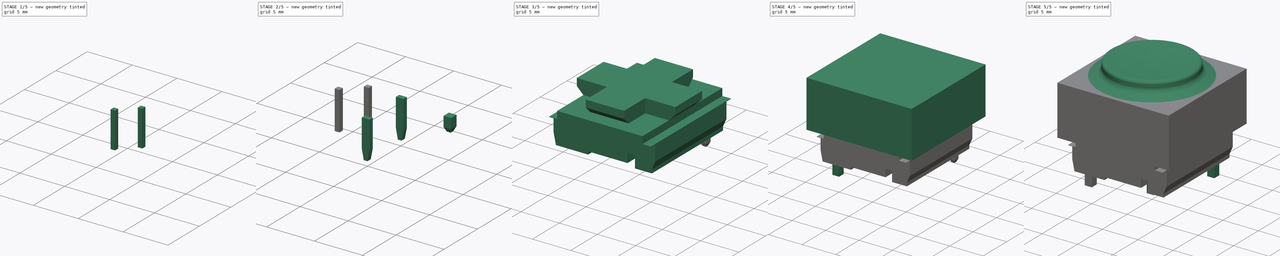
[diagram: build sequence overview — one tinted view per stage of 5, left to right]
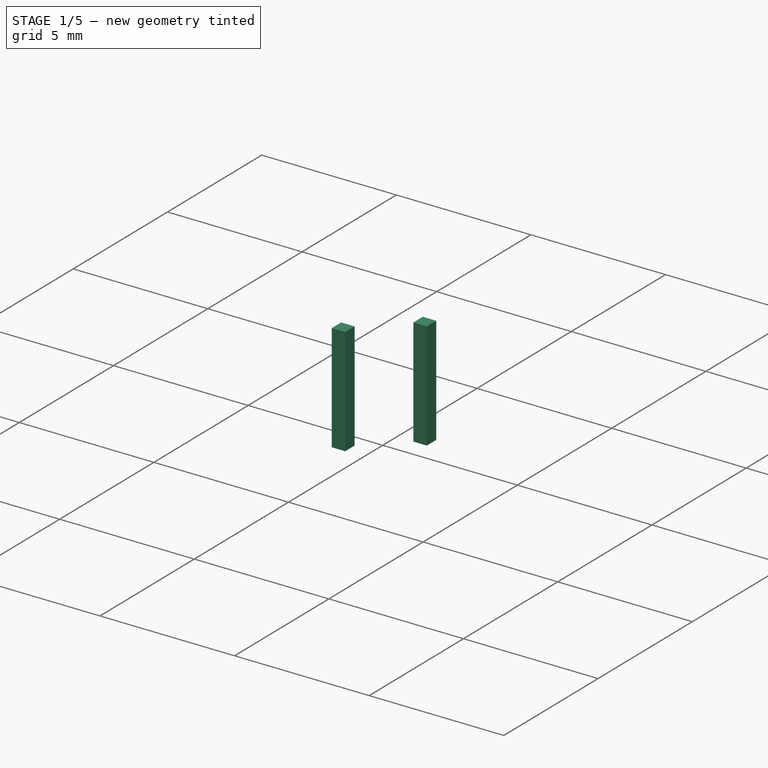
[diagram: stage 1 of 5 — iso view after this stage's code; geometry added in this stage tinted green]
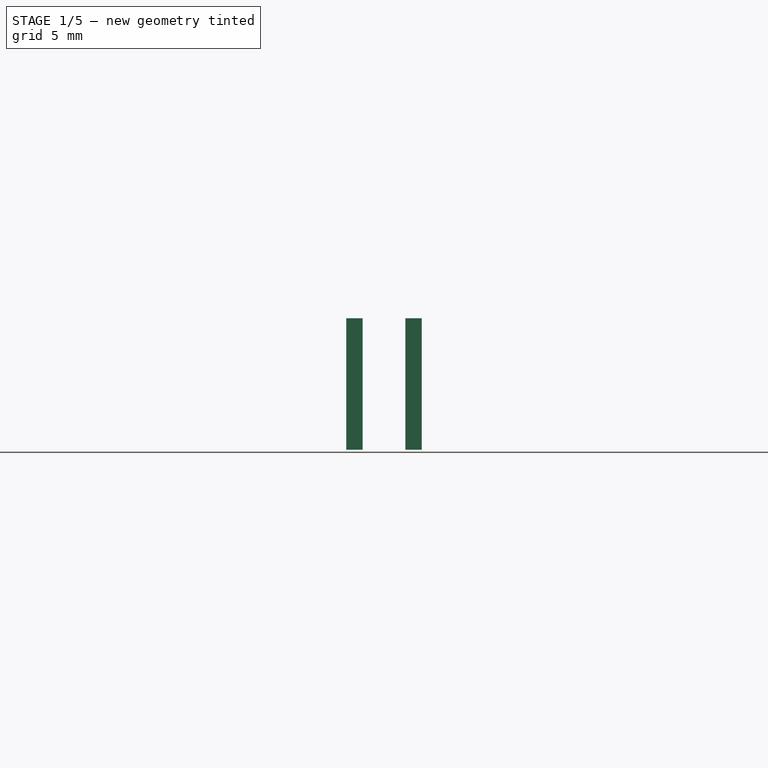
[diagram: stage 1 of 5 — front view after this stage's code; geometry added in this stage tinted green]
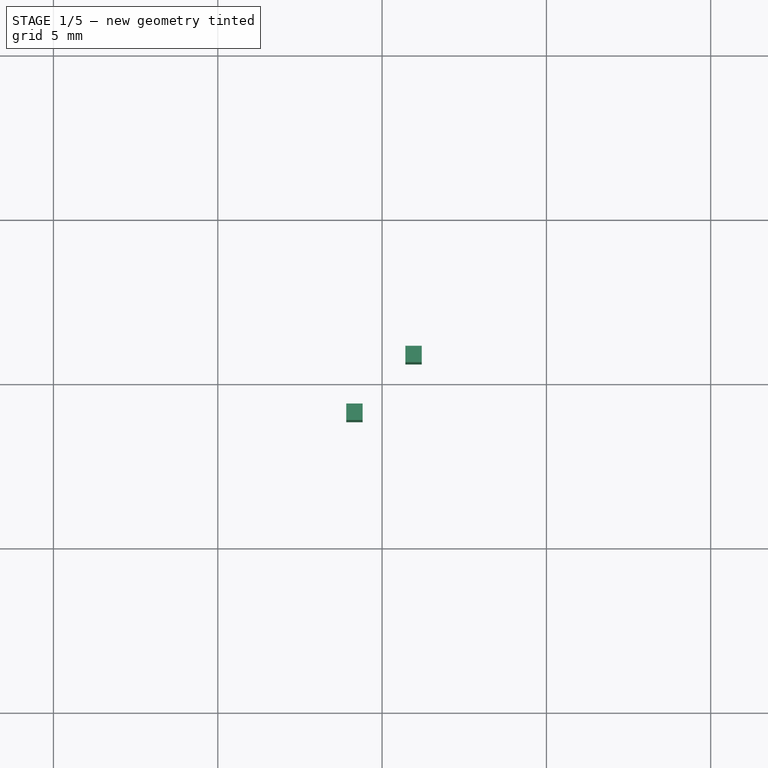
[diagram: stage 1 of 5 — top view after this stage's code; geometry added in this stage tinted green]
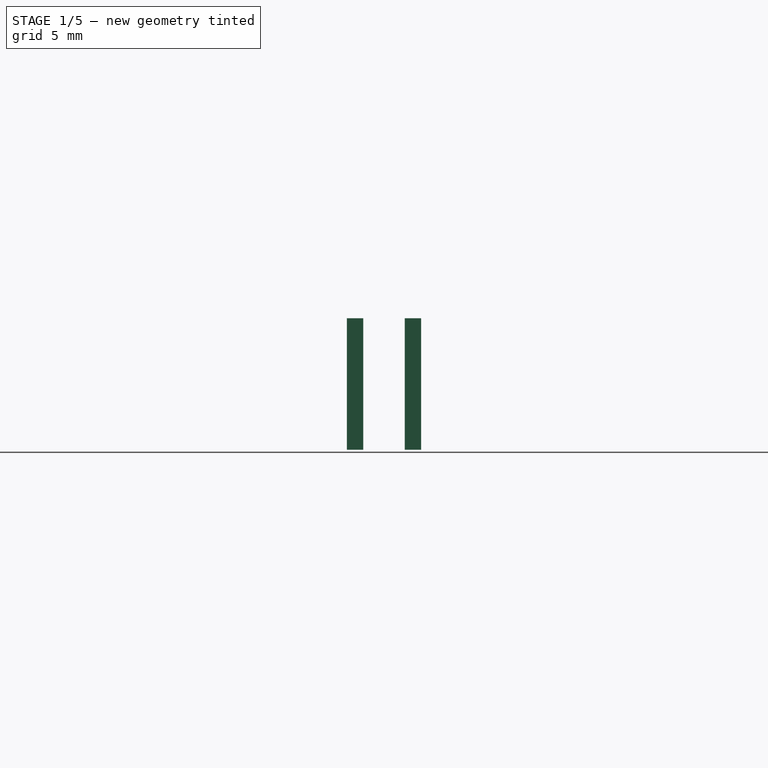
[diagram: stage 1 of 5 — right view after this stage's code; geometry added in this stage tinted green]
FCSTD DOCUMENT  (FreeCAD 0.17R13247 (Git))
Label: marquardt_6425
License: All rights reserved
LicenseURL: http://en.wikipedia.org/wiki/All_rights_reserved
objects: Sketcher::SketchObject×16, PartDesign::Pad×8, Part::FeaturePython×8, Part::Extrusion×5, Image::ImagePlane×4, Part::MultiCommon×4, Part::Compound×4, Part::MultiFuse×2, Part::Revolution×1, PartDesign::Pocket×1, PartDesign::Revolution×1, Spreadsheet::Sheet×1
note: 60 computed .brp shape members not serialized (recipe doc carries the construction recipe); baked Part::Feature solids carry a one-line shape summary decoded from their .brp

FEATURE [Sketcher::SketchObject] Sketch007
  MapMode = 5
  Placement = pos=(0,0,0) rot=(1,0,0;1.5708rad)
  sketch-geometry (4):
    g0: LineSegment StartX=-3.79179 StartY=-10.3286 StartZ=0 EndX=-4.29179 EndY=-10.3286 EndZ=0
    g1: LineSegment StartX=-4.29179 StartY=-10.3286 StartZ=0 EndX=-4.29179 EndY=-6.32858 EndZ=0
    g2: LineSegment StartX=-4.29179 StartY=-6.32858 StartZ=0 EndX=-3.79179 EndY=-6.32858 EndZ=0
    g3: LineSegment StartX=-3.79179 StartY=-6.32858 StartZ=0 EndX=-3.79179 EndY=-10.3286 EndZ=0
  constraints (11):
    c: Coincident(g0,g1)
    c: Coincident(g1,g2)
    c: Coincident(g2,g3)
    c: Coincident(g3,g0)
    c: Horizontal(g0)
    c: Horizontal(g2)
    c: Vertical(g1)
    c: Vertical(g3)
    c: DistanceY(g3,g3) = 4
    c: DistanceY(g1,g-1) = 6.32858
    c: DistanceX(g0,g0) = 0.5
FEATURE [PartDesign::Pad] Pad005
  Length = 15
  Length2 = 100
  Midplane = true
  Placement = pos=(0,0,0) rot=(1,0,0;1.5708rad)
  Profile = -> Sketch007
  Type = 0
FEATURE [Sketcher::SketchObject] Sketch008
  MapMode = 5
  Placement = pos=(0,0,0) rot=(0.57735,-0.57735,-0.57735;2.0944rad)
  sketch-geometry (4):
    g0: LineSegment StartX=-3.85457 StartY=-10.3286 StartZ=0 EndX=-4.35457 EndY=-10.3286 EndZ=0
    g1: LineSegment StartX=-4.35457 StartY=-10.3286 StartZ=0 EndX=-4.35457 EndY=-6.32858 EndZ=0
    g2: LineSegment StartX=-4.35457 StartY=-6.32858 StartZ=0 EndX=-3.85457 EndY=-6.32858 EndZ=0
    g3: LineSegment StartX=-3.85457 StartY=-6.32858 StartZ=0 EndX=-3.85457 EndY=-10.3286 EndZ=0
  constraints (11):
    c: Coincident(g0,g1)
    c: Coincident(g1,g2)
    c: Coincident(g2,g3)
    c: Coincident(g3,g0)
    c: Horizontal(g0)
    c: Horizontal(g2)
    c: Vertical(g1)
    c: Vertical(g3)
    c: DistanceX(g0,g0) = 0.5
    c: DistanceY(g1,g1) = 4
    c: DistanceY(g1,g-1) = 6.32858
FEATURE [PartDesign::Pad] Pad006
  Length = 15
  Length2 = 100
  Midplane = true
  Placement = pos=(0,0,0) rot=(0.57735,-0.57735,-0.57735;2.0944rad)
  Profile = -> Sketch008
  Type = 0
FEATURE [Part::FeaturePython] Clone002  label="Clone of Pad005"  # Draft clone (typed FeaturePython)
  Objects = -> [Pad005]
  Placement = pos=(-1.8,0,0) rot=(1,0,0;1.5708rad)
  Scale = (1,1,1)
FEATURE [Part::FeaturePython] Clone003  label="Clone of Pad006"  # Draft clone (typed FeaturePython)
  Objects = -> [Pad006]
  Placement = pos=(0,1.76,0) rot=(0.57735,-0.57735,-0.57735;2.0944rad)
  Scale = (1,1,1)
FEATURE [Part::MultiCommon] Common001
  Shapes = -> [Pad005,Clone003]
FEATURE [Part::MultiCommon] Common002
  Shapes = -> [Pad006,Clone002]
FEATURE [Part::Compound] Compound003  label="LedPin"
  Links = -> [Common002,Common001]
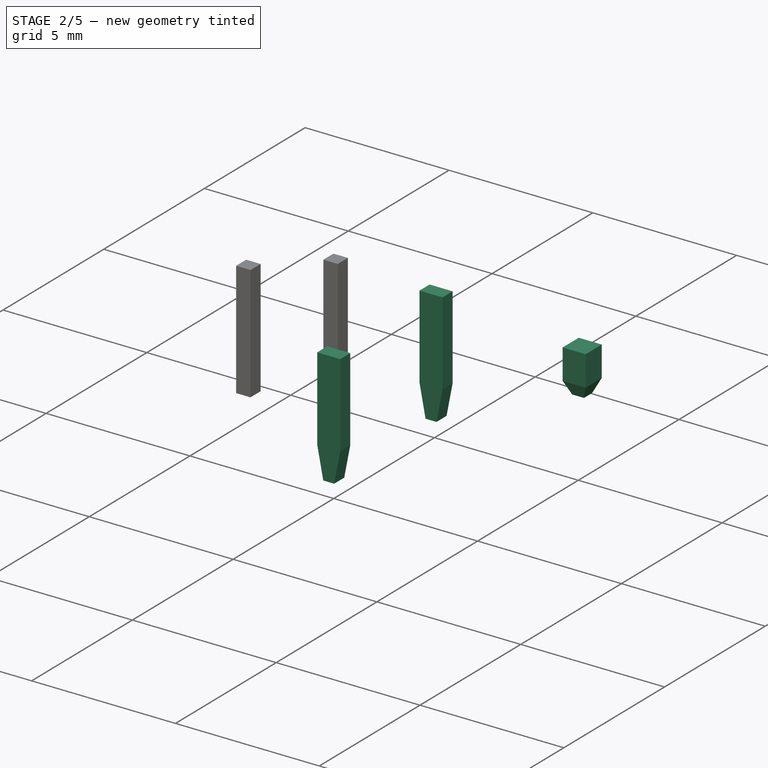
[diagram: stage 2 of 5 — iso view after this stage's code; geometry added in this stage tinted green]
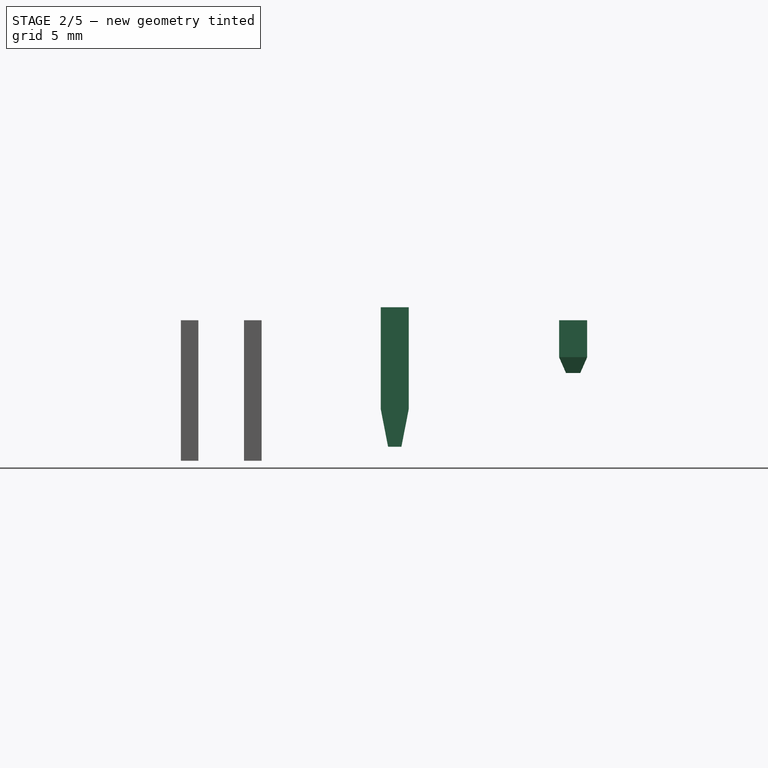
[diagram: stage 2 of 5 — front view after this stage's code; geometry added in this stage tinted green]
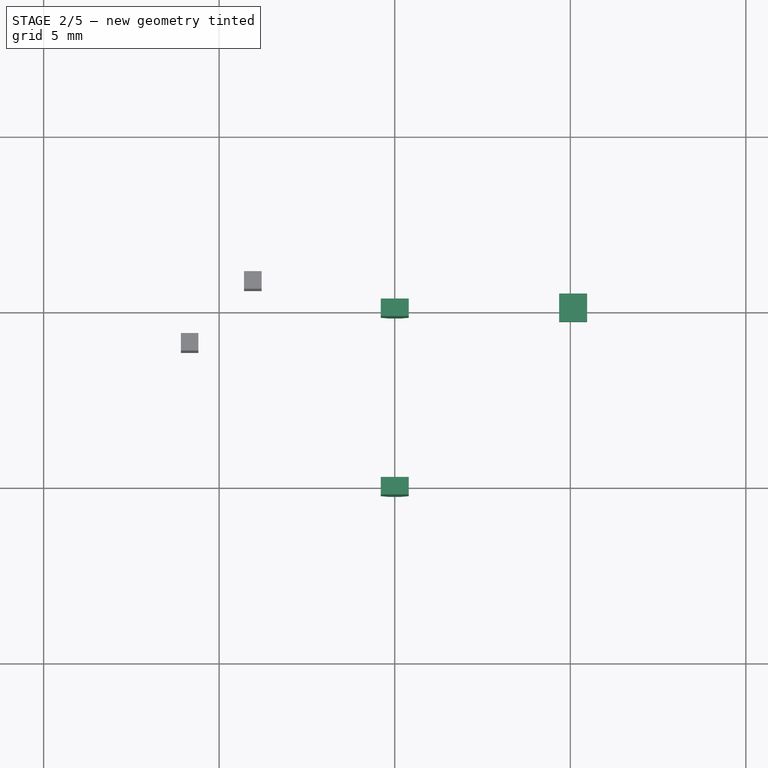
[diagram: stage 2 of 5 — top view after this stage's code; geometry added in this stage tinted green]
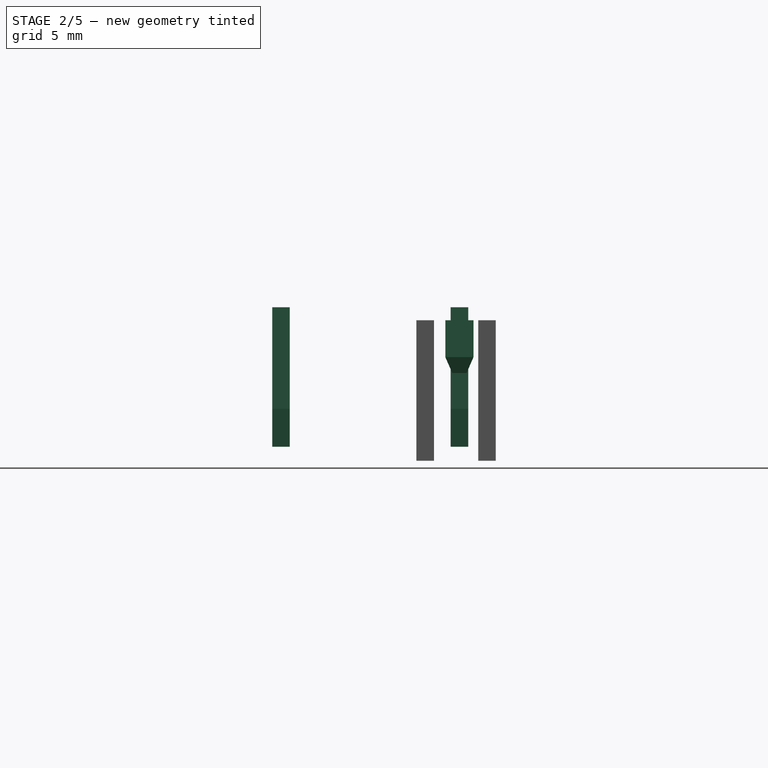
[diagram: stage 2 of 5 — right view after this stage's code; geometry added in this stage tinted green]
FEATURE [Sketcher::SketchObject] Sketch006  label="PinSketch"
  MapMode = 5
  Placement = pos=(0,0,0) rot=(1,0,0;1.5708rad)
  sketch-geometry (6):
    g0: LineSegment StartX=-0.4 StartY=-5.95822 StartZ=0 EndX=0.4 EndY=-5.95822 EndZ=0
    g1: LineSegment StartX=0.4 StartY=-5.95822 StartZ=0 EndX=0.4 EndY=-8.85254 EndZ=0
    g2: LineSegment StartX=0.4 StartY=-8.85254 StartZ=0 EndX=0.189691 EndY=-9.92858 EndZ=0
    g3: LineSegment StartX=0.189691 StartY=-9.92858 StartZ=0 EndX=-0.189691 EndY=-9.92858 EndZ=0
    g4: LineSegment StartX=-0.189691 StartY=-9.92858 StartZ=0 EndX=-0.4 EndY=-8.85254 EndZ=0
    g5: LineSegment StartX=-0.4 StartY=-8.85254 StartZ=0 EndX=-0.4 EndY=-5.95822 EndZ=0
  constraints (15):
    c: Horizontal(g0)
    c: Coincident(g0,g1)
    c: Vertical(g1)
    c: Coincident(g1,g2)
    c: Coincident(g2,g3)
    c: Coincident(g3,g4)
    c: Coincident(g4,g5)
    c: Coincident(g5,g0)
    c: Vertical(g5)
    c: DistanceY(g3,g0) = 3.97036  'Length'
    c: DistanceY(g0,g-1) = 5.95822  'PosNegZ'
    c: Symmetric(g0,g0,g-2)
    c: Symmetric(g4,g1,g-2)
    c: Symmetric(g2,g3,g-2)
    c: DistanceX(g4,g1) = 0.8  'WidthBig'
FEATURE [PartDesign::Pad] Pad004  label="Pin"
  Length = 0.5
  Length2 = 100
  Midplane = true
  Placement = pos=(0,0,0) rot=(1,0,0;1.5708rad)
  Profile = -> Sketch006
  Type = 0
FEATURE [Part::FeaturePython] Clone001  label="Clone of Pin"  # Draft clone (typed FeaturePython)
  Objects = -> [Pad004]
  Placement = pos=(0,5.08,0) rot=(1,0,0;1.5708rad)
  Scale = (1,1,1)
FEATURE [Sketcher::SketchObject] Sketch009
  MapMode = 5
  Placement = pos=(0,0,0) rot=(1,0,0;1.5708rad)
  sketch-geometry (6):
    g0: LineSegment StartX=-0.4 StartY=-6.32858 StartZ=0 EndX=-0.4 EndY=-7.37968 EndZ=0
    g1: LineSegment StartX=-0.4 StartY=-7.37968 StartZ=0 EndX=-0.203809 EndY=-7.82858 EndZ=0
    g2: LineSegment StartX=-0.203809 StartY=-7.82858 StartZ=0 EndX=0.203809 EndY=-7.82858 EndZ=0
    g3: LineSegment StartX=0.203809 StartY=-7.82858 StartZ=0 EndX=0.4 EndY=-7.37968 EndZ=0
    g4: LineSegment StartX=0.4 StartY=-7.37968 StartZ=0 EndX=0.4 EndY=-6.32858 EndZ=0
    g5: LineSegment StartX=0.4 StartY=-6.32858 StartZ=0 EndX=-0.4 EndY=-6.32858 EndZ=0
  constraints (16):
    c: Vertical(g0)
    c: Coincident(g0,g1)
    c: Coincident(g1,g2)
    c: Horizontal(g2)
    c: Coincident(g2,g3)
    c: Coincident(g3,g4)
    c: Vertical(g4)
    c: Coincident(g4,g5)
    c: Horizontal(g5)
    c: Equal(g0,g4)
    c: Coincident(g5,g0)
    c: DistanceY(g1,g0) = 1.5
    c: Equal(g3,g1)
    c: DistanceX(g0,g3) = 0.8
    c: DistanceY(g0,g-1) = 6.32858
    c: Symmetric(g0,g3,g-2)
FEATURE [PartDesign::Pad] Pad007
  Length = 0.8
  Length2 = 100
  Midplane = true
  Placement = pos=(0,0,0) rot=(1,0,0;1.5708rad)
  Profile = -> Sketch009
  Type = 0
FEATURE [Part::FeaturePython] Clone004  label="Clone of Pad007"  # Draft clone (typed FeaturePython)
  Objects = -> [Pad007]
  Placement = pos=(0,0,0) rot=(0.57735,0.57735,0.57735;2.0944rad)
  Scale = (1,1,1)
FEATURE [Part::MultiCommon] Common003  label="PlasticPin"
  Placement = pos=(-5.08,-5.08,0) rot=(0,0,1;0rad)
  Shapes = -> [Pad007,Clone004]
FEATURE [Part::FeaturePython] Clone005  label="Clone of PlasticPin"  # Draft clone (typed FeaturePython)
  Objects = -> [Common003]
  Placement = pos=(5.08,5.08,0) rot=(0,0,1;0rad)
  Scale = (1,1,1)
FEATURE [Part::Compound] Compound002  label="Pin001"
  Links = -> [Pad004,Clone001]
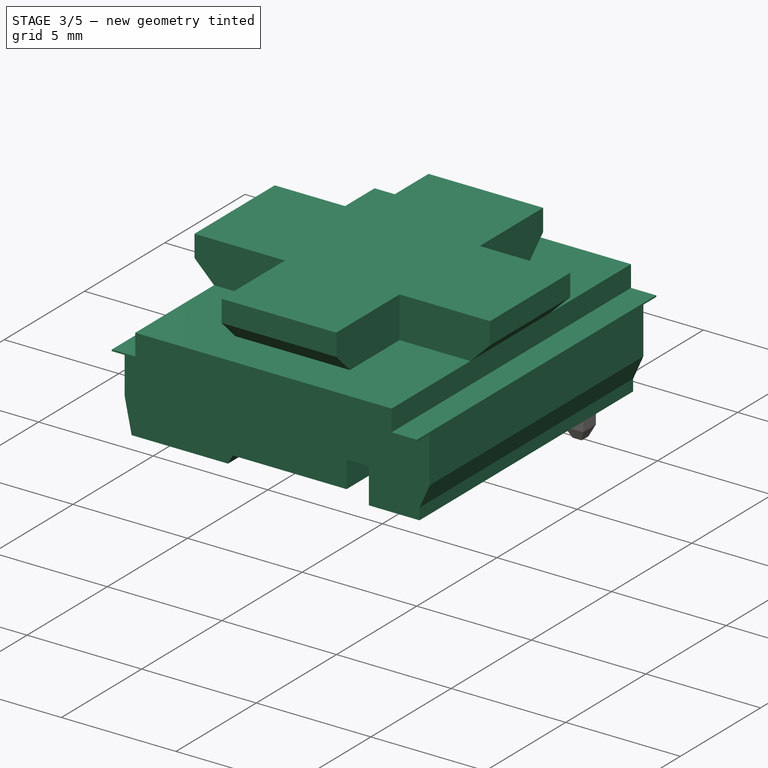
[diagram: stage 3 of 5 — iso view after this stage's code; geometry added in this stage tinted green]
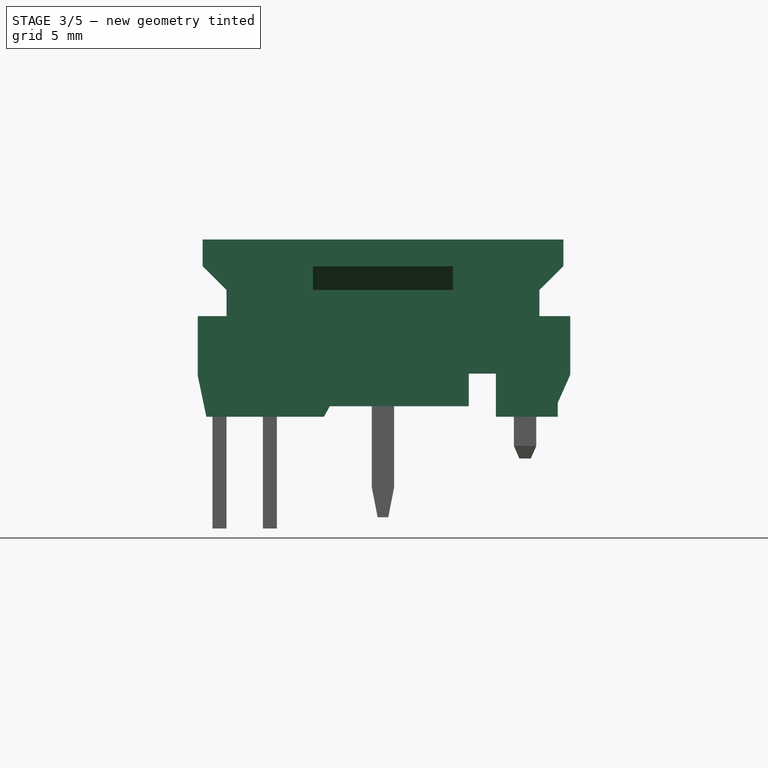
[diagram: stage 3 of 5 — front view after this stage's code; geometry added in this stage tinted green]
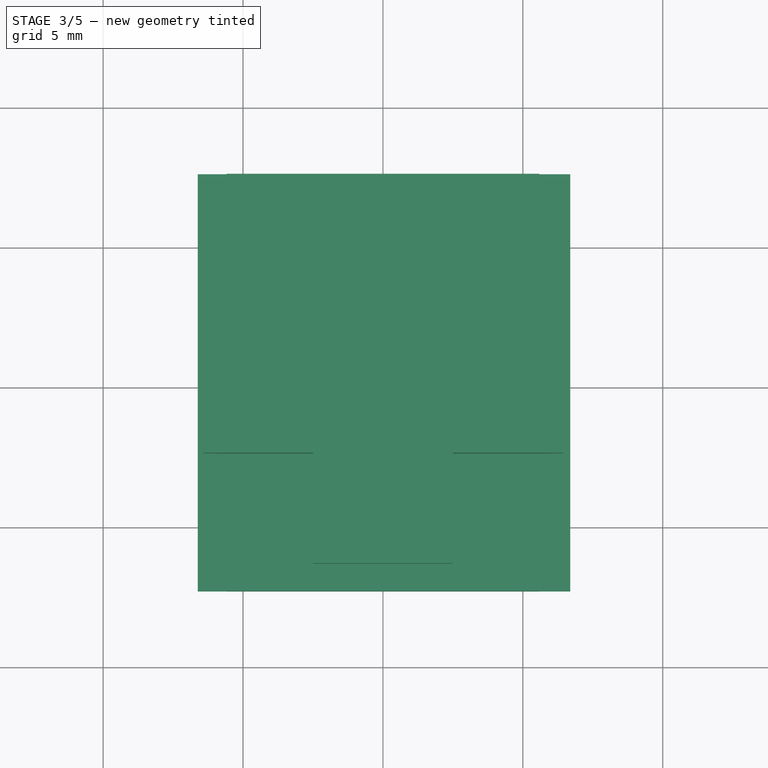
[diagram: stage 3 of 5 — top view after this stage's code; geometry added in this stage tinted green]
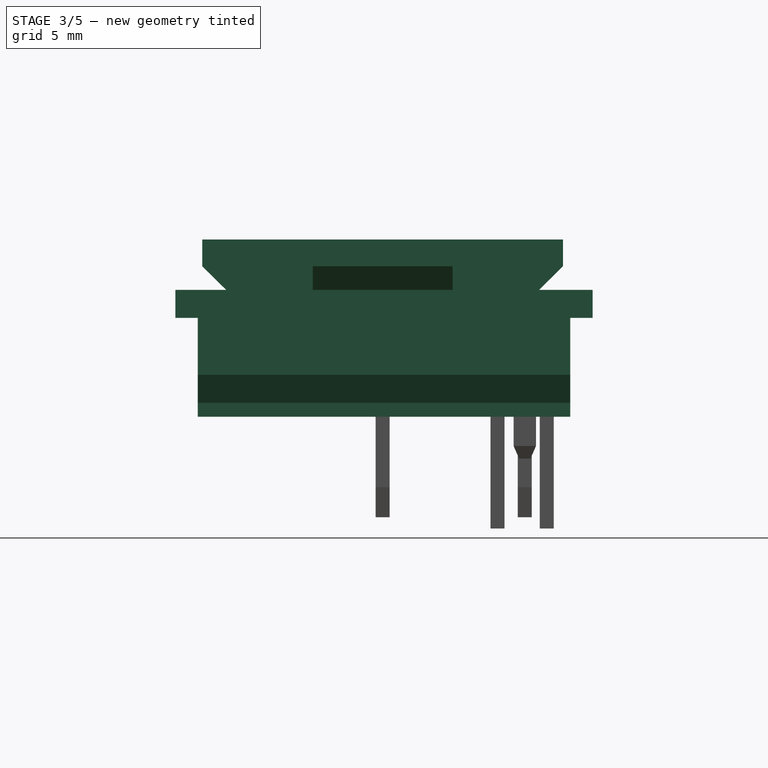
[diagram: stage 3 of 5 — right view after this stage's code; geometry added in this stage tinted green]
FEATURE [Sketcher::SketchObject] Sketch003
  MapMode = 5
  Placement = pos=(0,0,0) rot=(1,0,0;1.5708rad)
  sketch-geometry (6):
    g0: LineSegment StartX=-6.44607 StartY=0 StartZ=0 EndX=-6.44607 EndY=-0.955104 EndZ=0
    g1: LineSegment StartX=-6.44607 StartY=-0.955104 StartZ=0 EndX=-5.59363 EndY=-1.8 EndZ=0
    g2: LineSegment StartX=-5.59363 StartY=-1.8 StartZ=0 EndX=5.59363 EndY=-1.8 EndZ=0
    g3: LineSegment StartX=5.59363 StartY=-1.8 StartZ=0 EndX=6.44607 EndY=-0.955104 EndZ=0
    g4: LineSegment StartX=6.44607 StartY=-0.955104 StartZ=0 EndX=6.44607 EndY=0 EndZ=0
    g5: LineSegment StartX=6.44607 StartY=0 StartZ=0 EndX=-6.44607 EndY=0 EndZ=0
  constraints (14):
    c: PointOnObject(g0,g-1)
    c: Vertical(g0)
    c: Coincident(g0,g1)
    c: Coincident(g1,g2)
    c: Horizontal(g2)
    c: Coincident(g2,g3)
    c: Coincident(g3,g4)
    c: PointOnObject(g4,g-1)
    c: Vertical(g4)
    c: Coincident(g4,g5)
    c: Coincident(g5,g0)
    c: Symmetric(g1,g2,g-2)
    c: Symmetric(g0,g3,g-2)
    c: DistanceY(g1,g0) = 1.8
FEATURE [PartDesign::Pad] Pad001
  Length = 5
  Length2 = 100
  Midplane = true
  Placement = pos=(0,0,0) rot=(1,0,0;1.5708rad)
  Profile = -> Sketch003
  Type = 0
FEATURE [Part::FeaturePython] Clone  label="Clone of Pad001"  # Draft clone (typed FeaturePython)
  Objects = -> [Pad001]
  Placement = pos=(0,0,0) rot=(0.57735,0.57735,0.57735;2.0944rad)
  Scale = (1,1,1)
FEATURE [Image::ImagePlane] ImagePlane003
  Placement = pos=(0.602,0,-3.6) rot=(-1,0,0;4.71239rad)
  XSize = 40.9697
  YSize = 33.4754
FEATURE [Image::ImagePlane] ImagePlane004
  Placement = pos=(-3,-0.67,-4.1) rot=(-0.57735,0.57735,0.57735;4.18879rad)
  XSize = 37.1821
  YSize = 34.3132
FEATURE [Part::MultiFuse] Fusion001  label="Neck"
  Shapes = -> [Pad001,Clone]
FEATURE [Sketcher::SketchObject] Sketch004
  MapMode = 5
  Placement = pos=(0,0,0) rot=(0.57735,0.57735,0.57735;2.0944rad)
  sketch-geometry (8):
    g0: LineSegment StartX=7.50483 StartY=-1.8 StartZ=0 EndX=-7.40883 EndY=-1.8 EndZ=0
    g1: LineSegment StartX=-7.40883 StartY=-1.8 StartZ=0 EndX=-7.40883 EndY=-2.8 EndZ=0
    g2: LineSegment StartX=-7.40883 StartY=-2.8 StartZ=0 EndX=-6.60818 EndY=-2.8 EndZ=0
    g3: LineSegment StartX=-6.60818 StartY=-2.8 StartZ=0 EndX=-6.60818 EndY=-6.4 EndZ=0
    g4: LineSegment StartX=-6.60818 StartY=-6.4 StartZ=0 EndX=6.70418 EndY=-6.4 EndZ=0
    g5: LineSegment StartX=6.70418 StartY=-6.4 StartZ=0 EndX=6.70418 EndY=-2.8 EndZ=0
    g6: LineSegment StartX=6.70418 StartY=-2.8 StartZ=0 EndX=7.50483 EndY=-2.8 EndZ=0
    g7: LineSegment StartX=7.50483 StartY=-2.8 StartZ=0 EndX=7.50483 EndY=-1.8 EndZ=0
  constraints (21):
    c: Horizontal(g0)
    c: Coincident(g0,g1)
    c: Vertical(g1)
    c: Coincident(g1,g2)
    c: Horizontal(g2)
    c: Coincident(g2,g3)
    c: Vertical(g3)
    c: Coincident(g3,g4)
    c: Horizontal(g4)
    c: Coincident(g4,g5)
    c: Vertical(g5)
    c: Coincident(g5,g6)
    c: Horizontal(g6)
    c: Coincident(g6,g7)
    c: Coincident(g7,g0)
    c: Vertical(g7)
    c: DistanceY(g0,g-1) = 1.8
    c: Equal(g2,g6)
    c: Equal(g7,g1)
    c: DistanceY(g7,g7) = 1
    c: DistanceY(g5,g5) = 3.6
FEATURE [PartDesign::Pad] Pad002
  Length = 20
  Length2 = 100
  Midplane = true
  Placement = pos=(0,0,0) rot=(0.57735,0.57735,0.57735;2.0944rad)
  Profile = -> Sketch004
  Type = 0
FEATURE [Sketcher::SketchObject] Sketch005
  MapMode = 5
  Placement = pos=(0,0,0) rot=(1,0,0;1.5708rad)
  sketch-geometry (17):
    g0: LineSegment StartX=-5.59185 StartY=-1.8 StartZ=0 EndX=-5.59185 EndY=-2.73656 EndZ=0
    g1: LineSegment StartX=-5.59185 StartY=-2.73656 StartZ=0 EndX=-6.61711 EndY=-2.73656 EndZ=0
    g2: LineSegment StartX=-6.61711 StartY=-2.73656 StartZ=0 EndX=-6.61711 EndY=-4.87458 EndZ=0
    g3: LineSegment StartX=-6.61711 StartY=-4.87458 StartZ=0 EndX=-6.31083 EndY=-6.33655 EndZ=0
    g4: LineSegment StartX=-6.31083 StartY=-6.33655 StartZ=0 EndX=-2.10915 EndY=-6.33655 EndZ=0
    g5: LineSegment StartX=-2.10915 StartY=-6.33655 StartZ=0 EndX=-1.89889 EndY=-5.95822 EndZ=0
    g6: LineSegment StartX=-1.89889 StartY=-5.95822 StartZ=0 EndX=3.06645 EndY=-5.95822 EndZ=0
    g7: LineSegment StartX=3.06645 StartY=-5.95822 StartZ=0 EndX=3.06645 EndY=-4.79371 EndZ=0
    g8: LineSegment StartX=3.06645 StartY=-4.79371 StartZ=0 EndX=4.03687 EndY=-4.79371 EndZ=0
    g9: LineSegment StartX=4.03687 StartY=-4.79371 StartZ=0 EndX=4.03687 EndY=-6.33655 EndZ=0
    g10: LineSegment StartX=4.03687 StartY=-6.33655 StartZ=0 EndX=6.24775 EndY=-6.33655 EndZ=0
    g11: LineSegment StartX=6.24775 StartY=-6.33655 StartZ=0 EndX=6.24775 EndY=-5.83469 EndZ=0
    g12: LineSegment StartX=6.24775 StartY=-5.83469 StartZ=0 EndX=6.69226 EndY=-4.83727 EndZ=0
    g13: LineSegment StartX=6.69226 StartY=-4.83727 StartZ=0 EndX=6.69226 EndY=-2.73656 EndZ=0
    g14: LineSegment StartX=6.69226 StartY=-2.73656 StartZ=0 EndX=5.59185 EndY=-2.73656 EndZ=0
    g15: LineSegment StartX=5.59185 StartY=-2.73656 StartZ=0 EndX=5.59185 EndY=-1.8 EndZ=0
    g16: LineSegment StartX=5.59185 StartY=-1.8 StartZ=0 EndX=-5.59185 EndY=-1.8 EndZ=0
  constraints (37):
    c: Vertical(g0)
    c: Coincident(g0,g1)
    c: Horizontal(g1)
    c: Coincident(g1,g2)
    c: Vertical(g2)
    c: Coincident(g2,g3)
    c: Coincident(g3,g4)
    c: Horizontal(g4)
    c: Coincident(g4,g5)
    c: Coincident(g5,g6)
    c: Horizontal(g6)
    c: Coincident(g6,g7)
    c: Vertical(g7)
    c: Coincident(g7,g8)
    c: Horizontal(g8)
    c: Coincident(g8,g9)
    c: Vertical(g9)
    c: Coincident(g9,g10)
    c: Horizontal(g10)
    c: Coincident(g10,g11)
    c: Vertical(g11)
    c: Coincident(g11,g12)
    c: Coincident(g12,g13)
    c: Vertical(g13)
    c: Coincident(g13,g14)
    c: Horizontal(g14)
    c: Coincident(g14,g15)
    c: Vertical(g15)
    c: Coincident(g15,g16)
    c: Coincident(g16,g0)
    c: Horizontal(g16)
    c: DistanceY(g0,g-1) = 1.8
    c: Equal(g0,g15)
    c: DistanceY(g3,g0) = 3.6
    c: DistanceY(g10,g14) = 3.6
    c: DistanceX(g16,g16) = 11.1837
    c: Symmetric(g15,g0,g-2)
FEATURE [PartDesign::Pad] Pad003
  Length = 20
  Length2 = 100
  Midplane = true
  Placement = pos=(0,0,0) rot=(1,0,0;1.5708rad)
  Profile = -> Sketch005
  Type = 0
FEATURE [Part::MultiCommon] Common  label="Base"
  Shapes = -> [Pad002,Pad003]
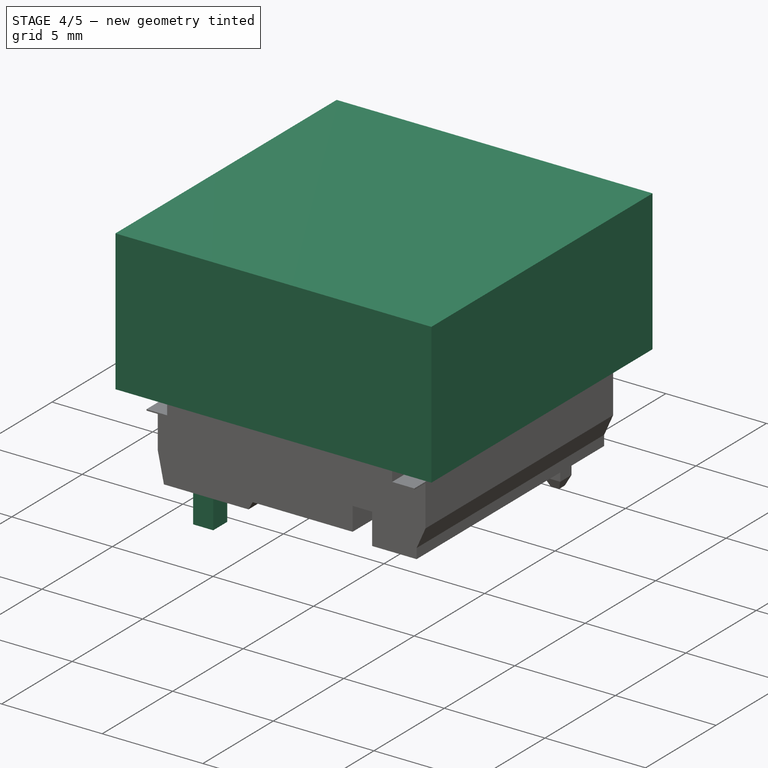
[diagram: stage 4 of 5 — iso view after this stage's code; geometry added in this stage tinted green]
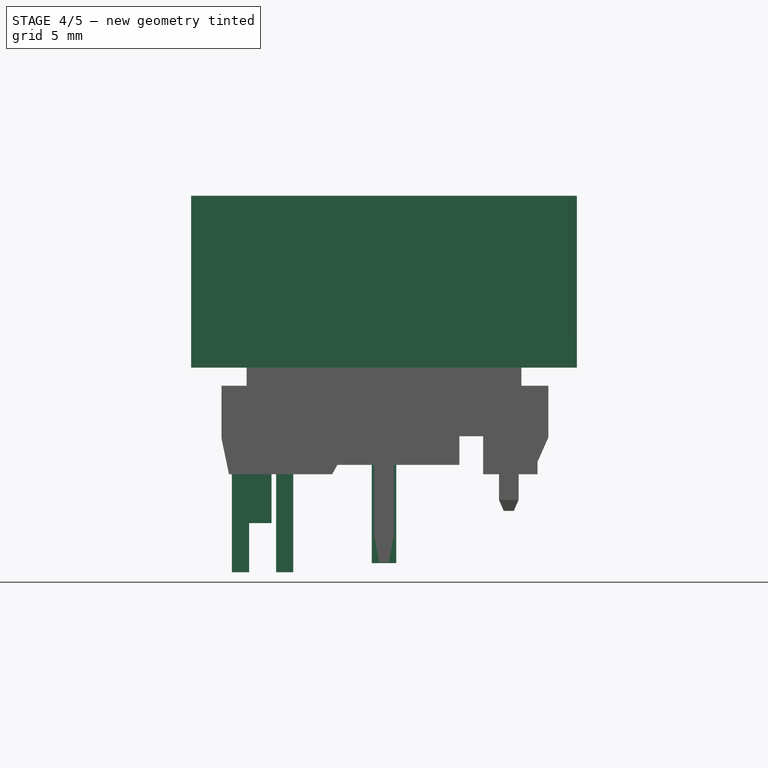
[diagram: stage 4 of 5 — front view after this stage's code; geometry added in this stage tinted green]
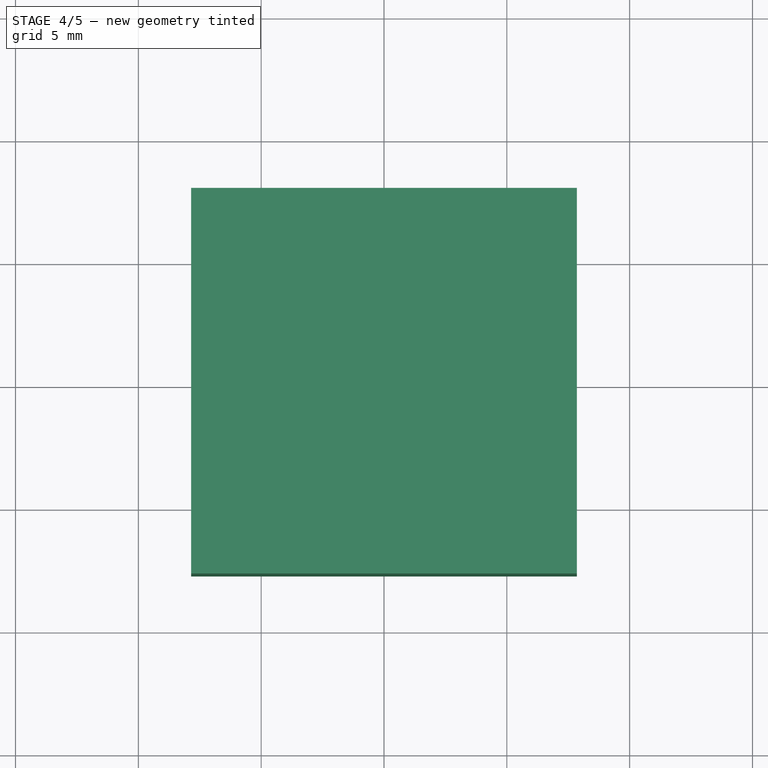
[diagram: stage 4 of 5 — top view after this stage's code; geometry added in this stage tinted green]
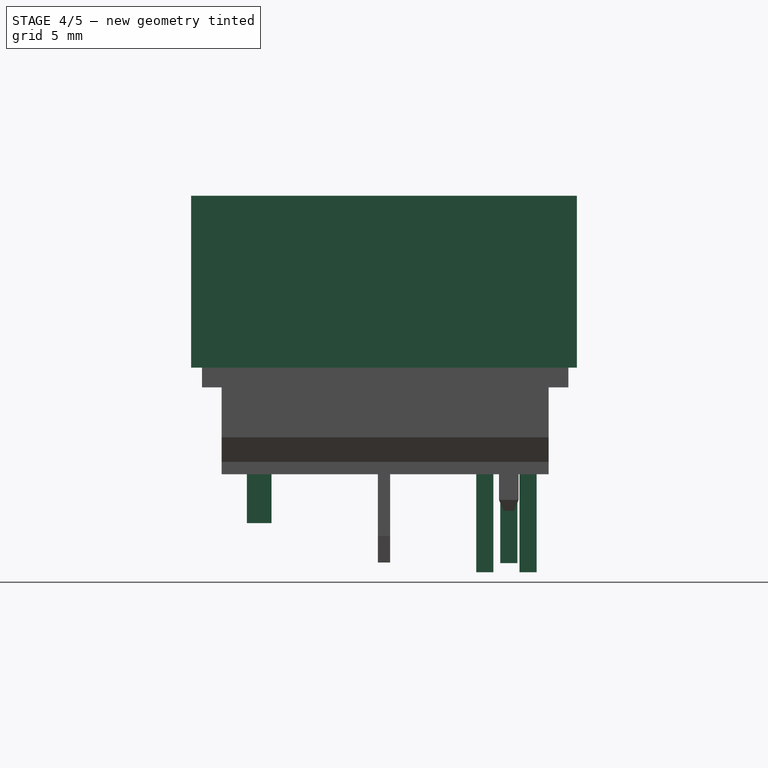
[diagram: stage 4 of 5 — right view after this stage's code; geometry added in this stage tinted green]
FEATURE [Spreadsheet::Sheet] Spreadsheet
  cells = B4=PCBTolerance; C4(PcbTolerance)=0.10000000000000001
FEATURE [Sketcher::SketchObject] Sketch011
  ExternalGeometry = -> [Common003]
  MapMode = 5
  Placement = pos=(-5.08,-5.08,-6.32858) rot=(0,0,1;0rad)
  Support = -> [Common003]
  expr: Constraints[11] = Spreadsheet.PcbTolerance
  expr: Constraints[10] = Spreadsheet.PcbTolerance
  expr: Constraints[9] = Spreadsheet.PcbTolerance
  expr: Constraints[8] = Spreadsheet.PcbTolerance
  sketch-geometry (4):
    g0: LineSegment StartX=-0.5 StartY=0.5 StartZ=0 EndX=0.5 EndY=0.5 EndZ=0
    g1: LineSegment StartX=0.5 StartY=0.5 StartZ=0 EndX=0.5 EndY=-0.5 EndZ=0
    g2: LineSegment StartX=0.5 StartY=-0.5 StartZ=0 EndX=-0.5 EndY=-0.5 EndZ=0
    g3: LineSegment StartX=-0.5 StartY=-0.5 StartZ=0 EndX=-0.5 EndY=0.5 EndZ=0
  constraints (12):
    c: Coincident(g0,g1)
    c: Coincident(g1,g2)
    c: Coincident(g2,g3)
    c: Coincident(g3,g0)
    c: Horizontal(g0)
    c: Horizontal(g2)
    c: Vertical(g1)
    c: Vertical(g3)
    c: DistanceX(g-4,g1) = 0.1
    c: DistanceY(g1,g-4) = 0.1
    c: DistanceY(g-3,g0) = 0.1
    c: DistanceX(g0,g-3) = 0.1
FEATURE [Part::Extrusion] Extrude  label="PlasticPinPcbHole"
  Base = -> Sketch011
  Dir = (0,0,-2)
  DirMode = 0
  FaceMakerClass = Part::FaceMakerExtrusion
  LengthFwd = 0
  LengthRev = 0
  Solid = true
  Symmetric = false
FEATURE [Sketcher::SketchObject] Sketch012
  ExternalGeometry = -> [Pad004]
  MapMode = 5
  Placement = pos=(0,0,-5.95822) rot=(0,0,1;3.14159rad)
  Support = -> [Pad004]
  expr: Constraints[11] = Spreadsheet.PcbTolerance
  expr: Constraints[10] = Spreadsheet.PcbTolerance
  expr: Constraints[9] = Spreadsheet.PcbTolerance
  expr: Constraints[8] = Spreadsheet.PcbTolerance
  sketch-geometry (4):
    g0: LineSegment StartX=-0.5 StartY=0.35 StartZ=0 EndX=0.5 EndY=0.35 EndZ=0
    g1: LineSegment StartX=0.5 StartY=0.35 StartZ=0 EndX=0.5 EndY=-0.35 EndZ=0
    g2: LineSegment StartX=0.5 StartY=-0.35 StartZ=0 EndX=-0.5 EndY=-0.35 EndZ=0
    g3: LineSegment StartX=-0.5 StartY=-0.35 StartZ=0 EndX=-0.5 EndY=0.35 EndZ=0
  constraints (12):
    c: Coincident(g0,g1)
    c: Coincident(g1,g2)
    c: Coincident(g2,g3)
    c: Coincident(g3,g0)
    c: Horizontal(g0)
    c: Horizontal(g2)
    c: Vertical(g1)
    c: Vertical(g3)
    c: DistanceX(g-4,g1) = 0.1
    c: DistanceY(g1,g-4) = 0.1
    c: DistanceX(g0,g-3) = 0.1
    c: DistanceY(g-3,g0) = 0.1
FEATURE [Part::Extrusion] Extrude001  label="PinPcbHole"
  Base = -> Sketch012
  Dir = (0,0,-4)
  DirMode = 0
  FaceMakerClass = Part::FaceMakerExtrusion
  LengthFwd = 0
  LengthRev = 0
  Solid = true
  Symmetric = false
FEATURE [Part::FeaturePython] Clone007  label="Clone of PinPcbHole"  # Draft clone (typed FeaturePython)
  Objects = -> [Extrude001]
  Placement = pos=(0,5.08,0) rot=(0,0,1;0rad)
  Scale = (1,1,1)
FEATURE [Sketcher::SketchObject] Sketch014
  ExternalGeometry = -> [Common002]
  MapMode = 5
  Placement = pos=(0,0,-6.32858) rot=(0,0,1;0rad)
  Support = -> [Common002]
  expr: Constraints[11] = Spreadsheet.PcbTolerance
  expr: Constraints[10] = Spreadsheet.PcbTolerance
  expr: Constraints[9] = Spreadsheet.PcbTolerance
  expr: Constraints[8] = Spreadsheet.PcbTolerance
  sketch-geometry (4):
    g0: LineSegment StartX=-6.19179 StartY=4.45457 StartZ=0 EndX=-5.49179 EndY=4.45457 EndZ=0
    g1: LineSegment StartX=-5.49179 StartY=4.45457 StartZ=0 EndX=-5.49179 EndY=3.75457 EndZ=0
    g2: LineSegment StartX=-5.49179 StartY=3.75457 StartZ=0 EndX=-6.19179 EndY=3.75457 EndZ=0
    g3: LineSegment StartX=-6.19179 StartY=3.75457 StartZ=0 EndX=-6.19179 EndY=4.45457 EndZ=0
  constraints (12):
    c: Coincident(g0,g1)
    c: Coincident(g1,g2)
    c: Coincident(g2,g3)
    c: Coincident(g3,g0)
    c: Horizontal(g0)
    c: Horizontal(g2)
    c: Vertical(g1)
    c: Vertical(g3)
    c: DistanceX(g-3,g0) = 0.1
    c: DistanceX(g2,g-4) = 0.1
    c: DistanceY(g2,g-4) = 0.1
    c: DistanceY(g-3,g0) = 0.1
FEATURE [Part::Extrusion] Extrude002
  Base = -> Sketch014
  Dir = (0,0,-4)
  DirMode = 0
  FaceMakerClass = Part::FaceMakerExtrusion
  LengthFwd = 0
  LengthRev = 0
  Solid = true
  Symmetric = false
FEATURE [Sketcher::SketchObject] Sketch015
  ExternalGeometry = -> [Common001]
  MapMode = 5
  Placement = pos=(0,0,-6.32858) rot=(0,0,1;0rad)
  Support = -> [Common001]
  expr: Constraints[11] = Spreadsheet.PcbTolerance
  expr: Constraints[10] = Spreadsheet.PcbTolerance
  expr: Constraints[9] = Spreadsheet.PcbTolerance
  expr: Constraints[8] = Spreadsheet.PcbTolerance
  sketch-geometry (4):
    g0: LineSegment StartX=-4.39179 StartY=6.21457 StartZ=0 EndX=-3.69179 EndY=6.21457 EndZ=0
    g1: LineSegment StartX=-3.69179 StartY=6.21457 StartZ=0 EndX=-3.69179 EndY=5.51457 EndZ=0
    g2: LineSegment StartX=-3.69179 StartY=5.51457 StartZ=0 EndX=-4.39179 EndY=5.51457 EndZ=0
    g3: LineSegment StartX=-4.39179 StartY=5.51457 StartZ=0 EndX=-4.39179 EndY=6.21457 EndZ=0
  constraints (12):
    c: Coincident(g0,g1)
    c: Coincident(g1,g2)
    c: Coincident(g2,g3)
    c: Coincident(g3,g0)
    c: Horizontal(g0)
    c: Horizontal(g2)
    c: Vertical(g1)
    c: Vertical(g3)
    c: DistanceX(g-4,g0) = 0.1
    c: DistanceX(g2,g-3) = 0.1
    c: DistanceY(g2,g-3) = 0.1
    c: DistanceY(g-4,g0) = 0.1
FEATURE [Part::Extrusion] Extrude003
  Base = -> Sketch015
  Dir = (0,0,-4)
  DirMode = 0
  FaceMakerClass = Part::FaceMakerExtrusion
  LengthFwd = 0
  LengthRev = 0
  Solid = true
  Symmetric = false
FEATURE [Sketcher::SketchObject] Sketch016
  MapMode = 5
  Placement = pos=(0,0,-2) rot=(1,0,0;3.14159rad)
  sketch-geometry (4):
    g0: LineSegment StartX=-7.85 StartY=7.85 StartZ=0 EndX=7.85 EndY=7.85 EndZ=0
    g1: LineSegment StartX=7.85 StartY=7.85 StartZ=0 EndX=7.85 EndY=-7.85 EndZ=0
    g2: LineSegment StartX=7.85 StartY=-7.85 StartZ=0 EndX=-7.85 EndY=-7.85 EndZ=0
    g3: LineSegment StartX=-7.85 StartY=-7.85 StartZ=0 EndX=-7.85 EndY=7.85 EndZ=0
  constraints (8):
    c: Coincident(g0,g1)
    c: Coincident(g1,g2)
    c: Coincident(g2,g3)
    c: Coincident(g3,g0)
    c: Horizontal(g0)
    c: Horizontal(g2)
    c: Vertical(g1)
    c: Vertical(g3)
FEATURE [Part::Extrusion] Extrude004  label="FPHole"
  Base = -> Sketch016
  Dir = (0,0,7)
  DirMode = 0
  FaceMakerClass = Part::FaceMakerExtrusion
  LengthFwd = 0
  LengthRev = 0
  Solid = true
  Symmetric = false
FEATURE [Part::Compound] Compound  label="Base001"
  Links = -> [Common003,Clone005,Common,Fusion001]
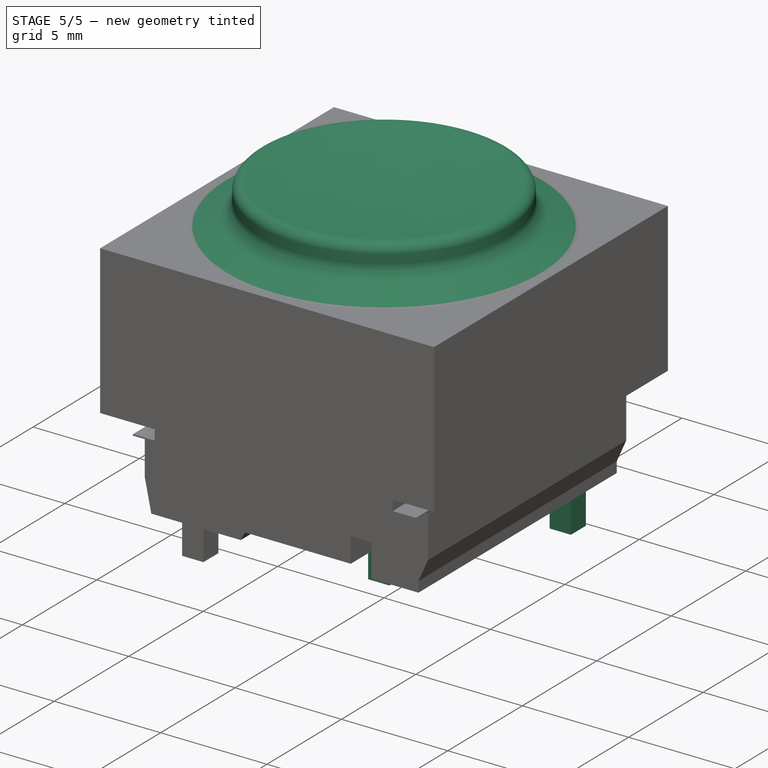
[diagram: stage 5 of 5 — iso view after this stage's code; geometry added in this stage tinted green]
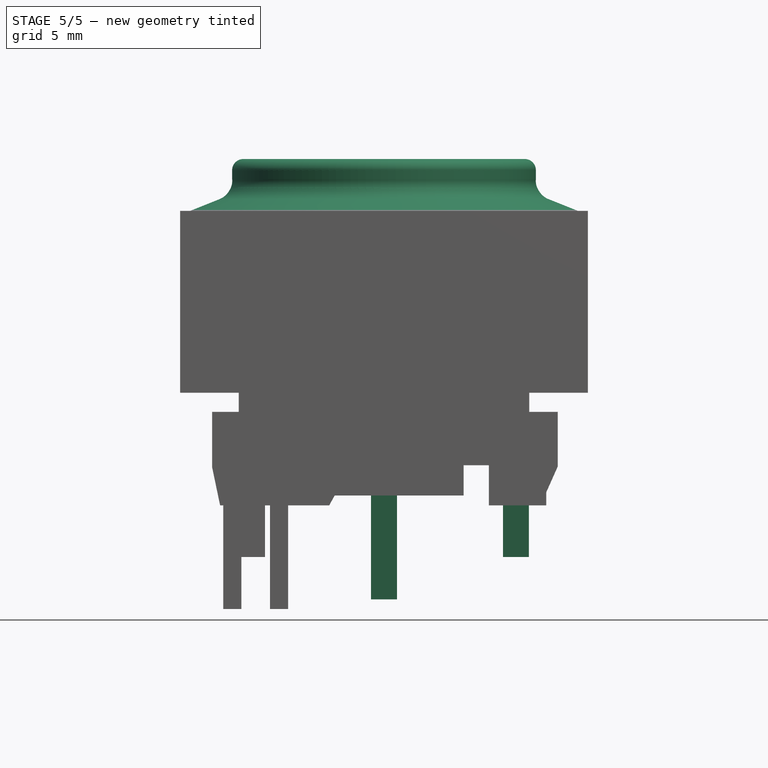
[diagram: stage 5 of 5 — front view after this stage's code; geometry added in this stage tinted green]
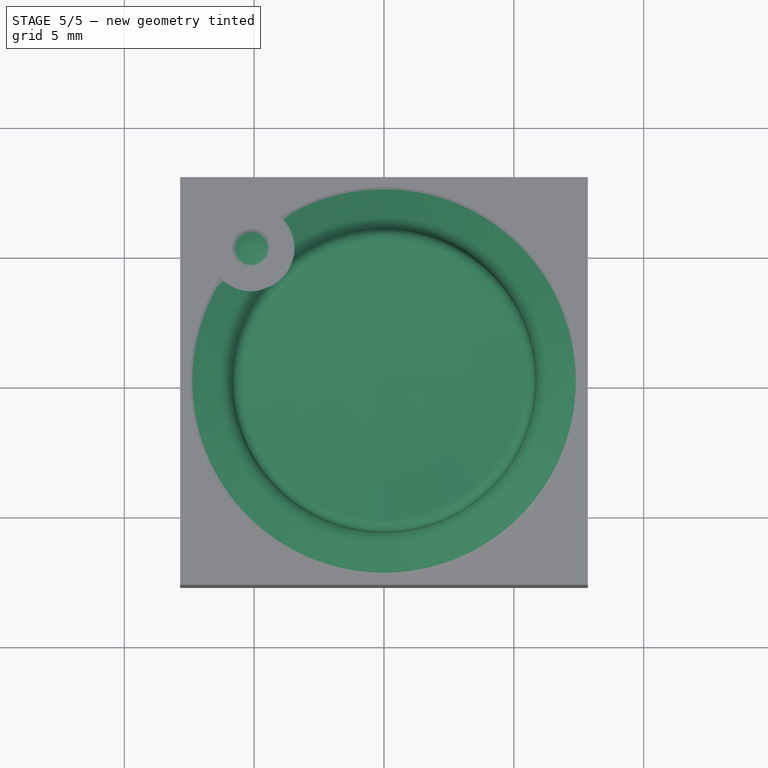
[diagram: stage 5 of 5 — top view after this stage's code; geometry added in this stage tinted green]
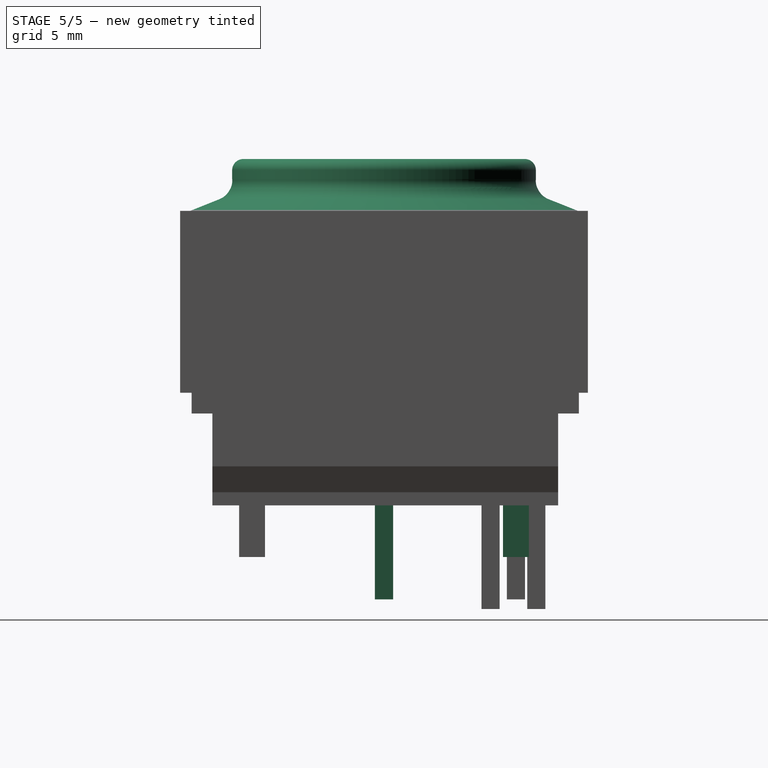
[diagram: stage 5 of 5 — right view after this stage's code; geometry added in this stage tinted green]
FEATURE [Image::ImagePlane] ImagePlane  label="Top"
  Placement = pos=(-4.58,-0.15,-0.1) rot=(0,0,1;0rad)
  XSize = 40.326
  YSize = 35.709
FEATURE [Image::ImagePlane] ImagePlane002  label="AllSide"
  Placement = pos=(-7.94,0.9,0.16) rot=(-1,0,0;4.71239rad)
  XSize = 46.6568
  YSize = 24.2022
FEATURE [Sketcher::SketchObject] Sketch
  MapMode = 5
  sketch-geometry (4):
    g0: LineSegment StartX=-7.75 StartY=7.75 StartZ=0 EndX=7.75 EndY=7.75 EndZ=0
    g1: LineSegment StartX=7.75 StartY=7.75 StartZ=0 EndX=7.75 EndY=-7.75 EndZ=0
    g2: LineSegment StartX=7.75 StartY=-7.75 StartZ=0 EndX=-7.75 EndY=-7.75 EndZ=0
    g3: LineSegment StartX=-7.75 StartY=-7.75 StartZ=0 EndX=-7.75 EndY=7.75 EndZ=0
  constraints (12):
    c: Coincident(g0,g1)
    c: Coincident(g3,g0)
    c: Horizontal(g0)
    c: Horizontal(g2)
    c: Vertical(g1)
    c: Vertical(g3)
    c: Symmetric(g0,g0,g-2)
    c: Equal(g1,g2)
    c: Coincident(g2,g1)
    c: Coincident(g2,g3)
    c: Symmetric(g1,g0,g-1)
    c: DistanceX(g2,g2) = 15.5
FEATURE [PartDesign::Pad] Pad
  Length = 4.3
  Length2 = 100
  Profile = -> Sketch
  Type = 0
FEATURE [Sketcher::SketchObject] Sketch001
  MapMode = 5
  Placement = pos=(0,0,0) rot=(1,0,0;1.5708rad)
  sketch-geometry (10):
    g0: LineSegment StartX=0 StartY=6.54069 StartZ=0 EndX=0 EndY=4.3 EndZ=0
    g1: LineSegment StartX=0 StartY=4.3 StartZ=0 EndX=7.75 EndY=4.3 EndZ=0
    g2: LineSegment StartX=7.75 StartY=4.3 StartZ=0 EndX=7.75 EndY=4.75687 EndZ=0
    g3: ArcOfCircle CenterX=7.15507 CenterY=4.35014 CenterZ=0 NormalX=0 NormalY=0 NormalZ=1 AngleXU=0 Radius=0.72068 StartAngle=0.599679 EndAngle=1.2443
    g4: LineSegment StartX=7.38621 StartY=5.03274 StartZ=0 EndX=6.33854 EndY=5.45138 EndZ=0
    g5: ArcOfCircle CenterX=6.62325 CenterY=6.16388 CenterZ=0 NormalX=0 NormalY=0 NormalZ=1 AngleXU=0 Radius=0.767279 StartAngle=3.62356 EndAngle=4.33224
    g6: ArcOfCircle CenterX=6.50384 CenterY=6.15627 CenterZ=0 NormalX=0 NormalY=0 NormalZ=1 AngleXU=0 Radius=0.659733 StartAngle=3.04653 EndAngle=3.69729
    g7: LineSegment StartX=5.84708 StartY=6.21889 StartZ=0 EndX=5.84708 EndY=6.55105 EndZ=0
    g8: ArcOfCircle CenterX=5.41944 CenterY=6.57012 CenterZ=0 NormalX=0 NormalY=0 NormalZ=1 AngleXU=0 Radius=0.428073 StartAngle=6.23861 EndAngle=7.88657
    g9: ArcOfCircle CenterX=0 CenterY=38.7183 CenterZ=0 NormalX=0 NormalY=0 NormalZ=1 AngleXU=0 Radius=32.1776 StartAngle=4.71239 EndAngle=4.88118
  constraints (20):
    c: PointOnObject(g0,g-2)
    c: Vertical(g0)
    c: Coincident(g0,g1)
    c: Horizontal(g1)
    c: Coincident(g1,g2)
    c: Vertical(g2)
    c: DistanceY(g-1,g0) = 4.3
    c: DistanceX(g1,g1) = 7.75
    c: Coincident(g3,g2)
    c: Coincident(g4,g3)
    c: Coincident(g5,g4)
    c: Tangent(g4,g5) = 1.5708
    c: Coincident(g6,g5)
    c: Vertical(g7)
    c: Coincident(g9,g8)
    c: PointOnObject(g9,g0)
    c: PointOnObject(g9,g-2)
    c: Coincident(g0,g9)
    c: Coincident(g8,g7)
    c: Coincident(g7,g6)
FEATURE [Part::Revolution] Revolve
  Angle = 360
  Axis = (0,0,1)
  Base = (0,0,0)
  Solid = true
  Source = -> Sketch001
  Symmetric = false
FEATURE [Part::MultiFuse] Fusion
  Shapes = -> [Pad,Revolve]
FEATURE [Sketcher::SketchObject] Sketch002
  MapMode = 5
  Placement = pos=(0,0,4.3) rot=(0,0,1;0rad)
  Support = -> [Fusion]
  sketch-geometry (1):
    g0: Circle CenterX=-5.1 CenterY=5.1 CenterZ=0 NormalX=0 NormalY=0 NormalZ=1 AngleXU=0 Radius=1.65
  constraints (3):
    c: DistanceY(g-1,g0) = 5.1
    c: Radius(g0) = 1.65
    c: DistanceX(g0,g-1) = 5.1
FEATURE [PartDesign::Pocket] Pocket  label="Cap"
  Length = 5
  Length2 = 100
  Midplane = true
  Profile = -> Sketch002
  Type = 1
FEATURE [Sketcher::SketchObject] Sketch010
  MapMode = 5
  Placement = pos=(-5.1,5.1,0) rot=(0.57735,0.57735,0.57735;2.0944rad)
  sketch-geometry (6):
    g0: LineSegment StartX=0 StartY=0.7 StartZ=0 EndX=1.7 EndY=0.7 EndZ=0
    g1: LineSegment StartX=1.7 StartY=0.7 StartZ=0 EndX=1.7 EndY=1.6 EndZ=0
    g2: LineSegment StartX=1.7 StartY=1.6 StartZ=0 EndX=1.5 EndY=1.8 EndZ=0
    g3: LineSegment StartX=1.5 StartY=1.8 StartZ=0 EndX=1.5 EndY=3.7 EndZ=0
    g4: ArcOfCircle CenterX=0 CenterY=3.7 CenterZ=0 NormalX=0 NormalY=0 NormalZ=1 AngleXU=0 Radius=1.5 StartAngle=2.4632e-08 EndAngle=1.5708
    g5: LineSegment StartX=0 StartY=5.2 StartZ=0 EndX=0 EndY=0.7 EndZ=0
  constraints (19):
    c: Horizontal(g0)
    c: Coincident(g1,g2)
    c: Coincident(g2,g3)
    c: Vertical(g1)
    c: Vertical(g3)
    c: Coincident(g3,g4)
    c: PointOnObject(g4,g-2)
    c: DistanceX(g-1,g3) = 1.5
    c: Tangent(g3,g4)
    c: PointOnObject(g4,g-2)
    c: DistanceX(g-1,g0) = 1.7
    c: PointOnObject(g0,g-2)
    c: DistanceY(g0,g3) = 3
    c: DistanceY(g-1,g0) = 0.7
    c: DistanceY(g1,g2) = 0.2
    c: DistanceY(g3,g3) = 1.9
    c: Coincident(g5,g0)
    c: Vertical(g5)
    c: Coincident(g5,g4)
FEATURE [PartDesign::Revolution] Revolution  label="Led"
  Angle = 360
  Axis = (0,0,1)
  Base = (-5.1,5.1,0)
  Placement = pos=(-5.1,5.1,0) rot=(0.57735,0.57735,0.57735;2.0944rad)
  Profile = -> Sketch010
  ReferenceAxis = -> Sketch010 [V_Axis]
  Reversed = true
FEATURE [Part::FeaturePython] Clone006  label="Clone of PlasticPinPcbHole"  # Draft clone (typed FeaturePython)
  Objects = -> [Extrude]
  Placement = pos=(10.16,10.16,0) rot=(0,0,1;0rad)
  Scale = (1,1,1)
FEATURE [Part::Compound] Compound001  label="PcbHoles"
  Links = -> [Extrude,Clone007,Clone006,Extrude001,Extrude002,Extrude003]
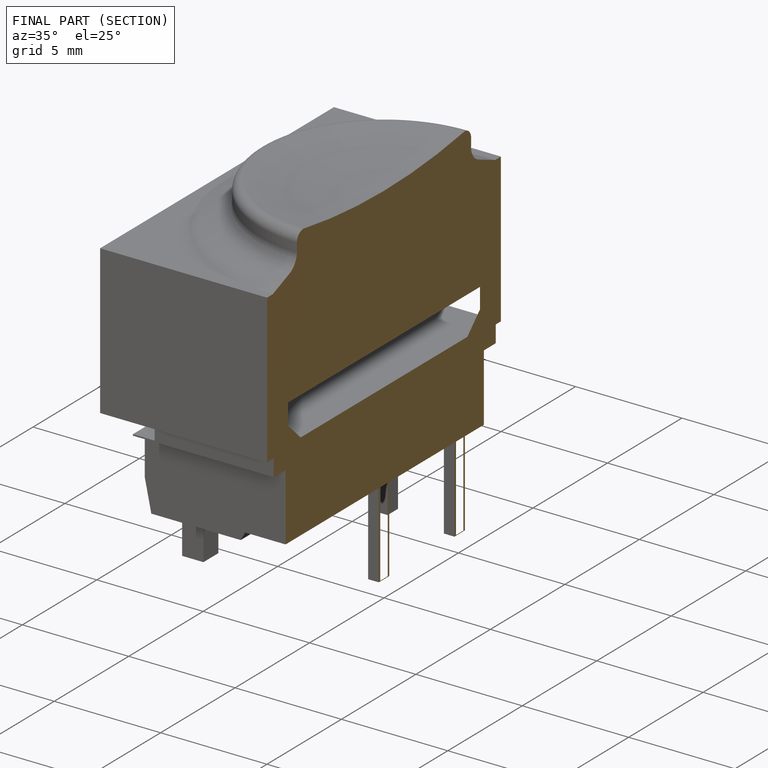
[diagram: finished part — half-section view (interior)]
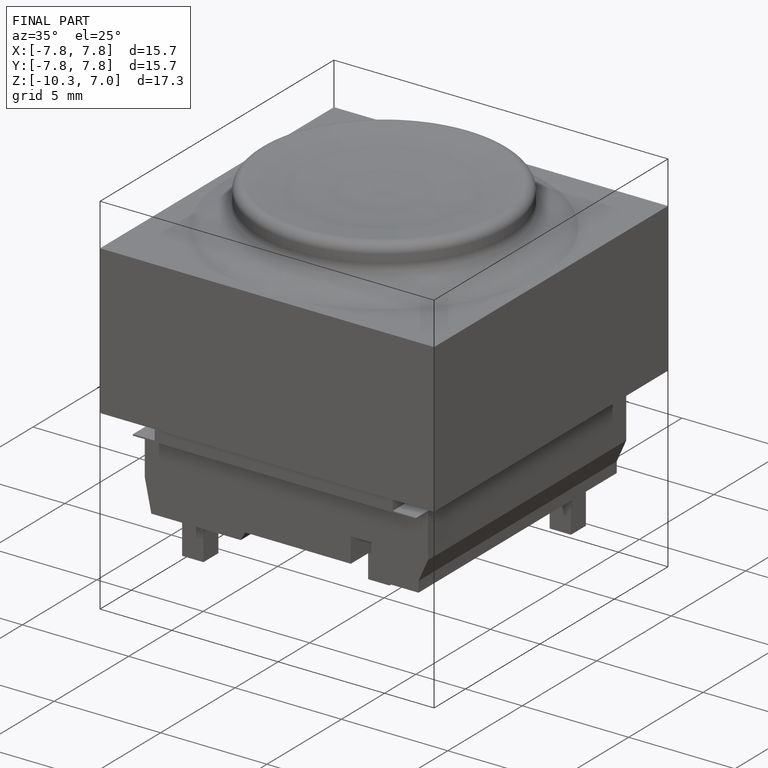
[diagram: finished part — iso view with bounding-box wireframe]
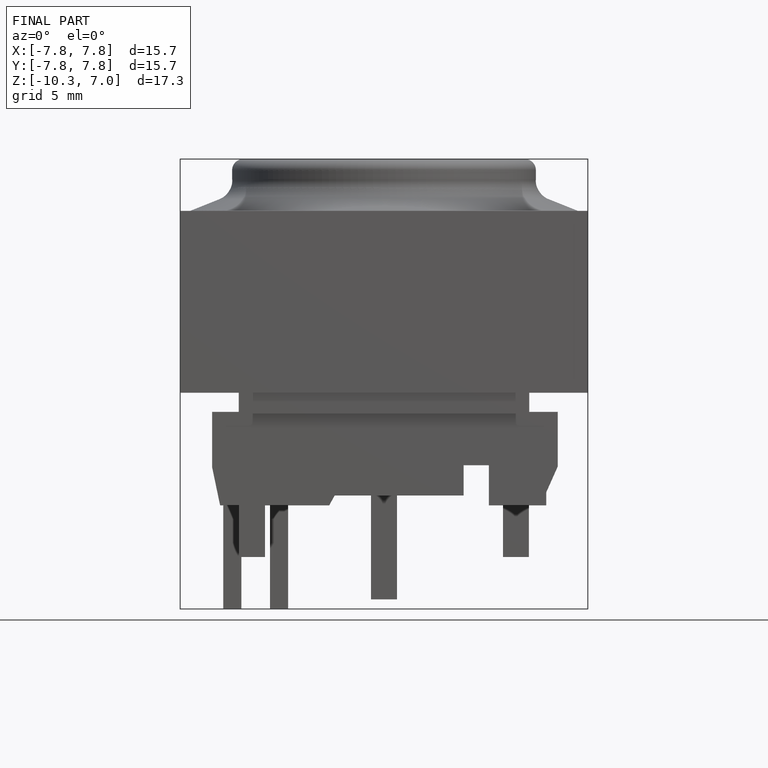
[diagram: finished part — front view with bounding-box wireframe]
